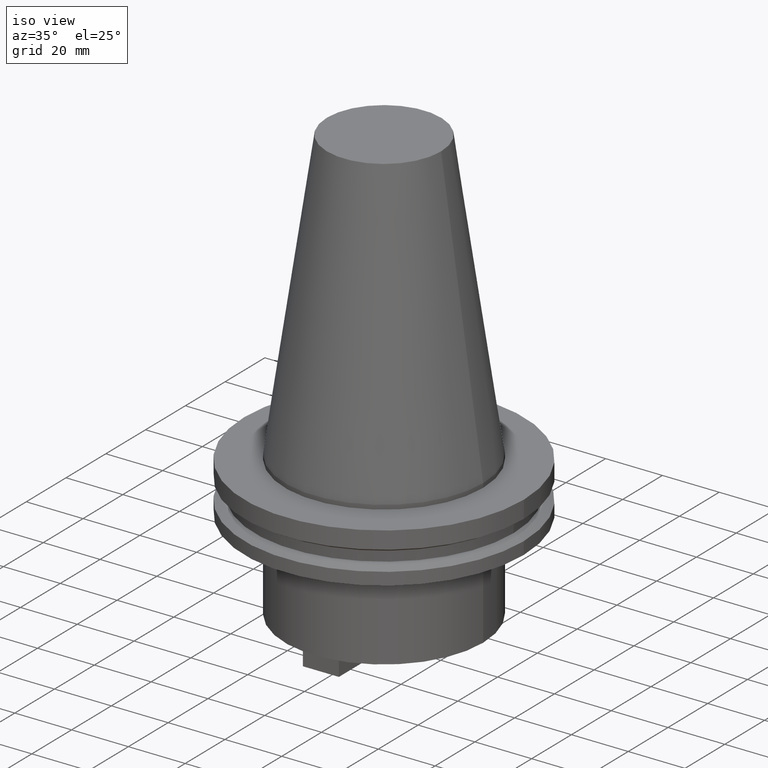
[diagram: clean part render]
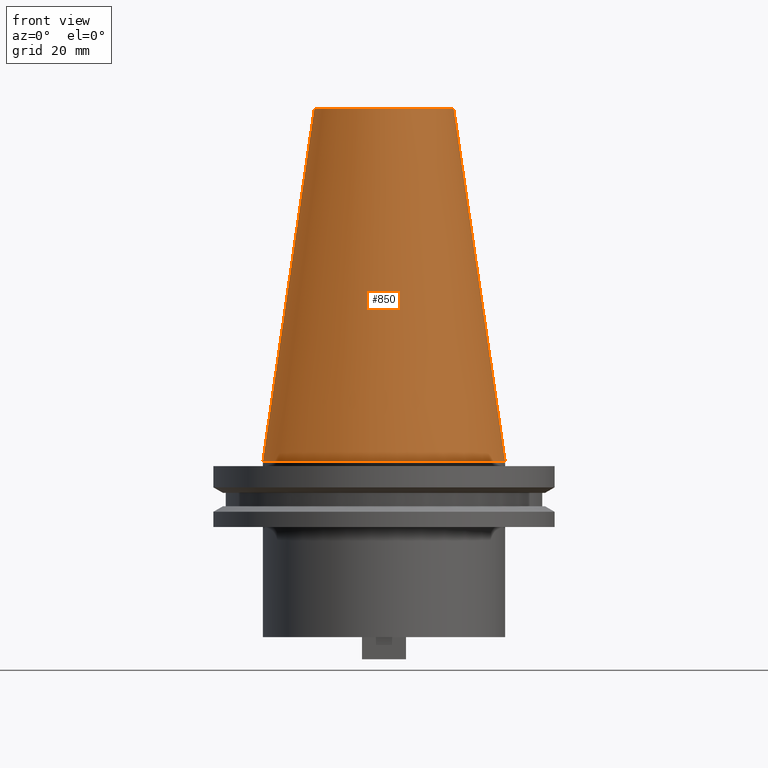
[diagram: tour spotlight — one face highlighted and labeled with its STEP entity id]
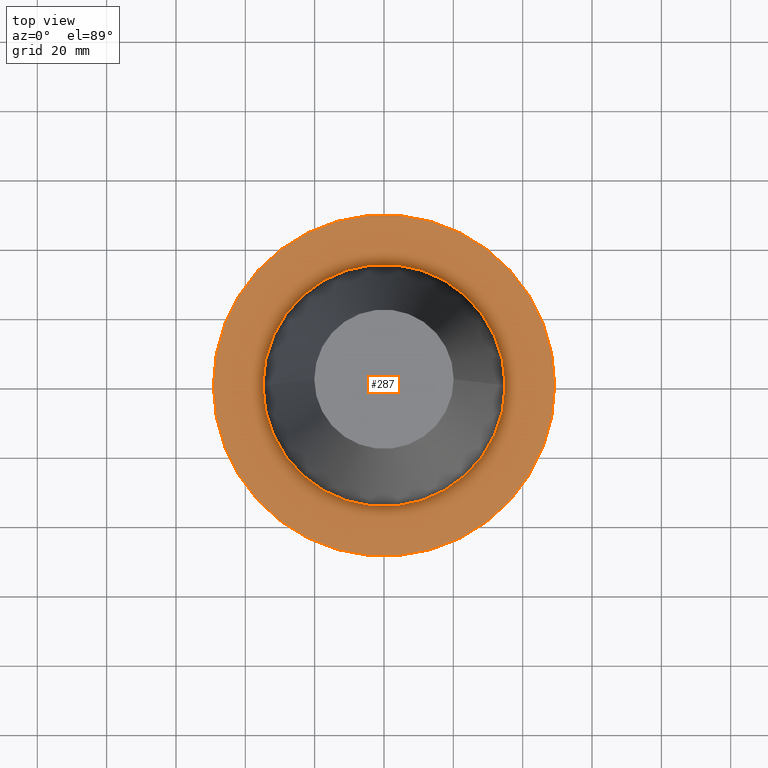
[diagram: tour spotlight — one face highlighted and labeled with its STEP entity id]
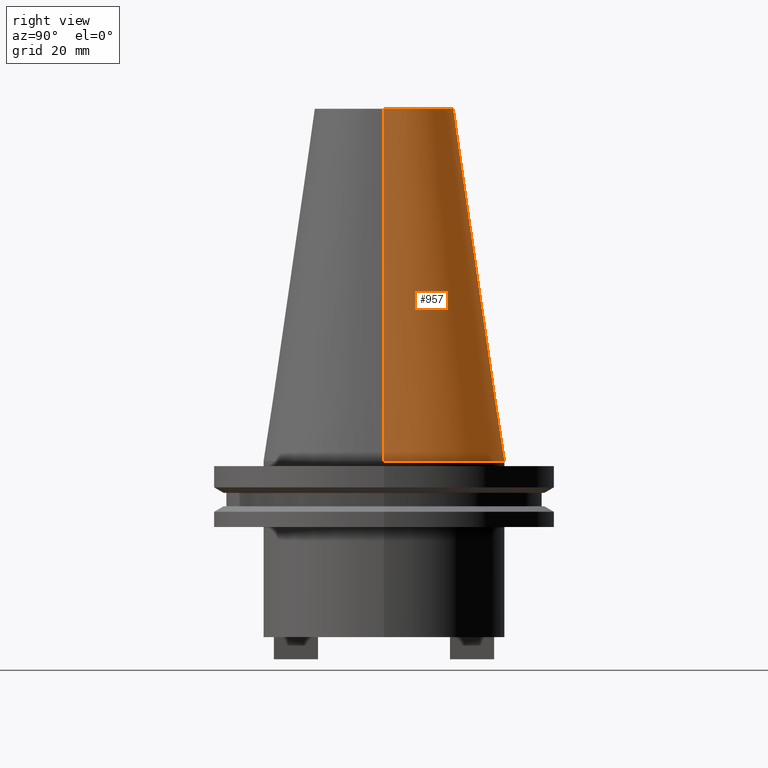
[diagram: tour spotlight — one face highlighted and labeled with its STEP entity id]
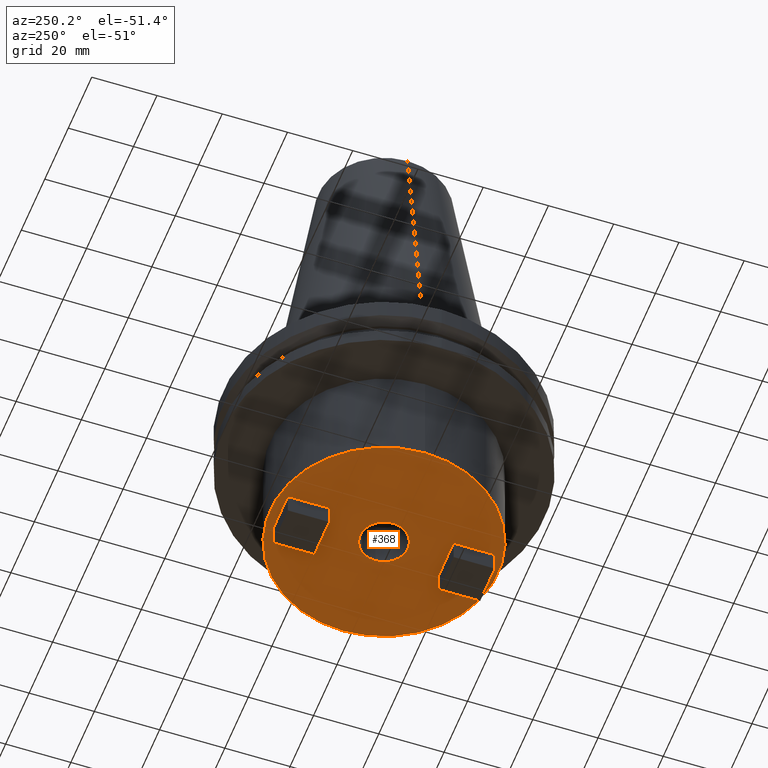
[diagram: tour spotlight — one face highlighted and labeled with its STEP entity id]
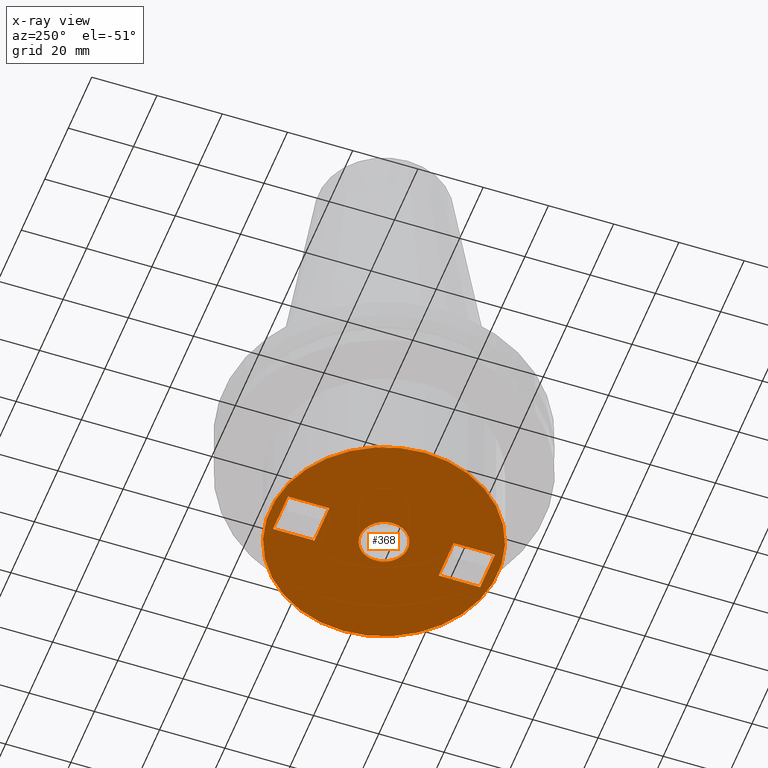
[diagram: x-ray of the same camera — body ghosted, this tour face saturated]
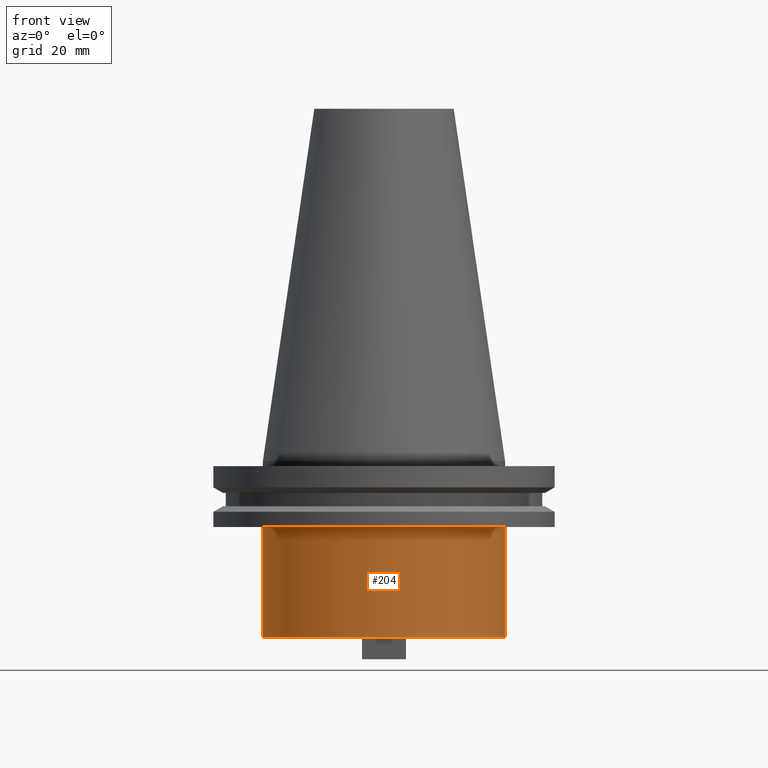
[diagram: tour spotlight — one face highlighted and labeled with its STEP entity id]
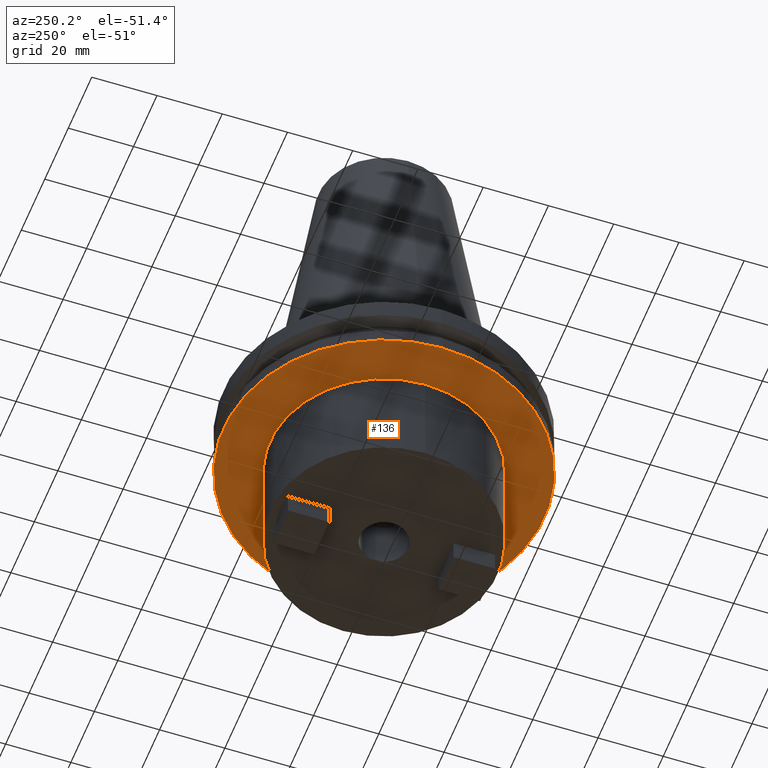
[diagram: tour spotlight — one face highlighted and labeled with its STEP entity id]
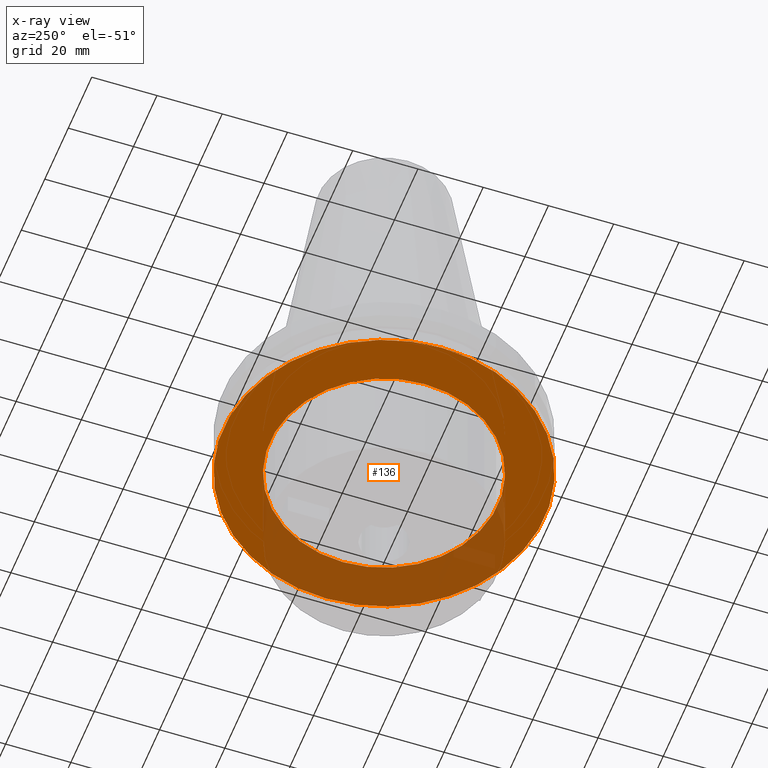
[diagram: x-ray of the same camera — body ghosted, this tour face saturated]
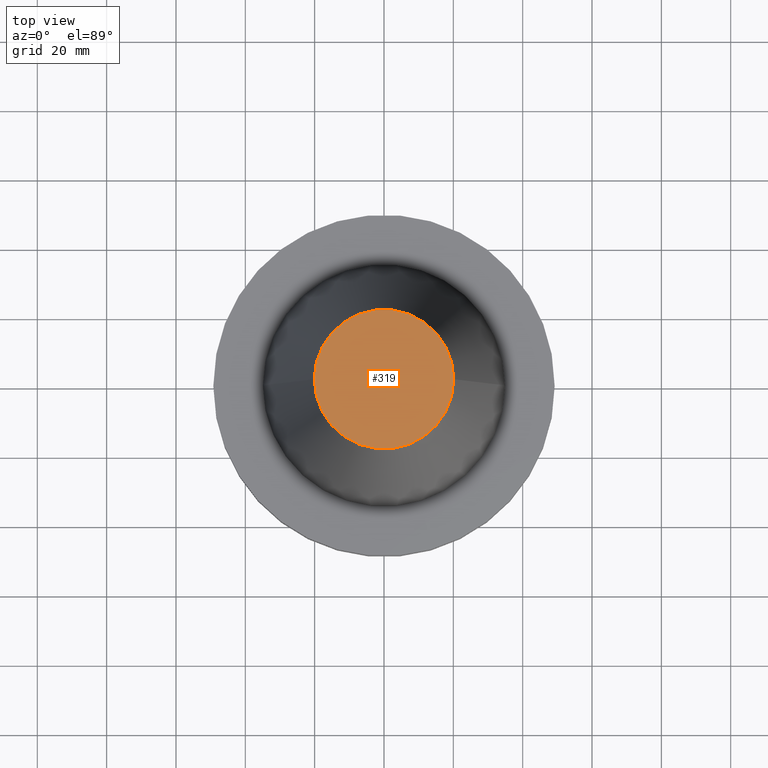
[diagram: tour spotlight — one face highlighted and labeled with its STEP entity id]
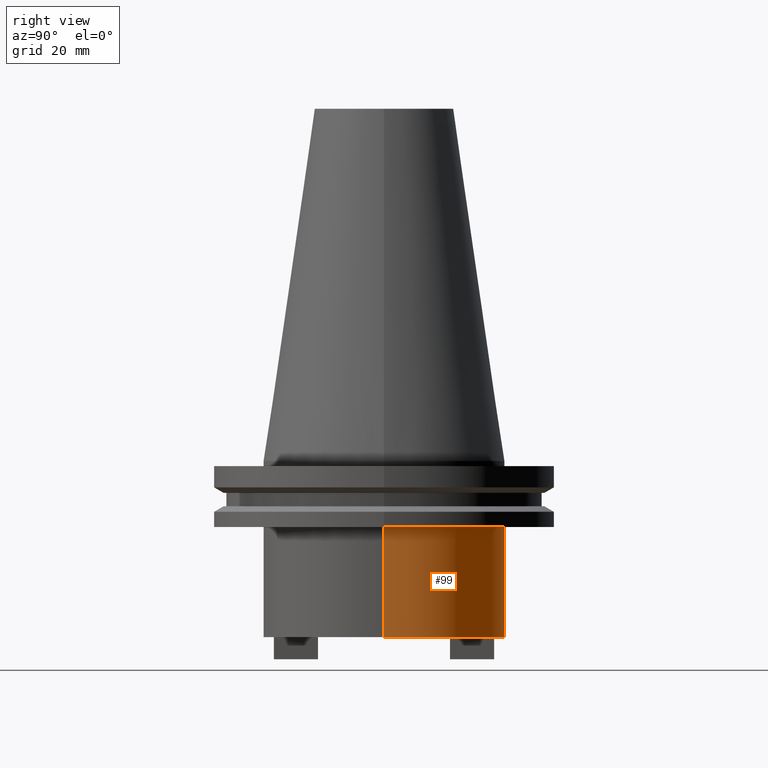
[diagram: tour spotlight — one face highlighted and labeled with its STEP entity id]
A machine part: a face-by-face anatomy tour. The part has 35 B-rep faces; the first image is the clean iso view, then the 8 largest visible faces are spotlighted one at a time (largest first), each with its STEP entity span.

Face 1 — front view, entity #850. In plain terms, the highlighted conical surface has half-angle 8.297 deg.
Definition (entity closure, byte-faithful):
#68 = AXIS2_PLACEMENT_3D ( 'NONE', #403, #802, #641 ) ;
#80 = DIRECTION ( 'NONE',  ( -0.000000000000000000, -0.000000000000000000, 1.000000000000000000 ) ) ;
#83 = ORIENTED_EDGE ( 'NONE', *, *, #469, .F. ) ;
#117 = EDGE_CURVE ( 'NONE', #989, #119, #818, .T. ) ;
#119 = VERTEX_POINT ( 'NONE', #896 ) ;
#186 = ORIENTED_EDGE ( 'NONE', *, *, #390, .T. ) ;
#188 = CARTESIAN_POINT ( 'NONE',  ( 0.000000000000000000, 0.000000000000000000, 0.000000000000000000 ) ) ;
#241 = CARTESIAN_POINT ( 'NONE',  ( -34.92499999999999005, 0.000000000000000000, 0.000000000000000000 ) ) ;
#247 = VECTOR ( 'NONE', #905, 999.9999999999998863 ) ;
#274 = CARTESIAN_POINT ( 'NONE',  ( 20.10819343178871321, 3.369811209154858606E-15, 101.5999999999999801 ) ) ;
#277 = CIRCLE ( 'NONE', #68, 34.92499999999999005 ) ;
#374 = CARTESIAN_POINT ( 'NONE',  ( -34.92499999999999005, 0.000000000000000000, 0.000000000000000000 ) ) ;
#389 = ORIENTED_EDGE ( 'NONE', *, *, #117, .F. ) ;
#390 = EDGE_CURVE ( 'NONE', #865, #119, #277, .T. ) ;
#402 = FACE_OUTER_BOUND ( 'NONE', #925, .T. ) ;
#403 = CARTESIAN_POINT ( 'NONE',  ( 0.000000000000000000, 0.000000000000000000, 0.000000000000000000 ) ) ;
#449 = LINE ( 'NONE', #374, #247 ) ;
#469 = EDGE_CURVE ( 'NONE', #978, #989, #898, .T. ) ;
#483 = AXIS2_PLACEMENT_3D ( 'NONE', #188, #501, #712 ) ;
#501 = DIRECTION ( 'NONE',  ( 0.000000000000000000, 0.000000000000000000, -1.000000000000000000 ) ) ;
#506 = CARTESIAN_POINT ( 'NONE',  ( 34.92499999999999005, 4.277078946022130098E-15, 0.000000000000000000 ) ) ;
#641 = DIRECTION ( 'NONE',  ( 1.000000000000000000, 0.000000000000000000, 0.000000000000000000 ) ) ;
#648 = AXIS2_PLACEMENT_3D ( 'NONE', #713, #80, #652 ) ;
#652 = DIRECTION ( 'NONE',  ( 1.000000000000000000, 0.000000000000000000, 0.000000000000000000 ) ) ;
#677 = VECTOR ( 'NONE', #824, 999.9999999999998863 ) ;
#688 = CARTESIAN_POINT ( 'NONE',  ( -20.10819343178871321, 0.000000000000000000, 101.5999999999999801 ) ) ;
#708 = CONICAL_SURFACE ( 'NONE', #483, 34.92499999999999005, 0.1448138465474119452 ) ;
#712 = DIRECTION ( 'NONE',  ( -1.000000000000000000, 0.000000000000000000, 0.000000000000000000 ) ) ;
#713 = CARTESIAN_POINT ( 'NONE',  ( 0.000000000000000000, 0.000000000000000000, 101.5999999999999801 ) ) ;
#802 = DIRECTION ( 'NONE',  ( -0.000000000000000000, -0.000000000000000000, 1.000000000000000000 ) ) ;
#818 = LINE ( 'NONE', #506, #677 ) ;
#824 = DIRECTION ( 'NONE',  ( 0.1443082272672999988, 1.767266086135277066E-17, -0.9895327864921755756 ) ) ;
#850 = ADVANCED_FACE ( 'NONE', ( #402 ), #708, .T. ) ;
#863 = ORIENTED_EDGE ( 'NONE', *, *, #997, .T. ) ;
#865 = VERTEX_POINT ( 'NONE', #241 ) ;
#896 = CARTESIAN_POINT ( 'NONE',  ( 34.92499999999999005, 4.277078946022130098E-15, 0.000000000000000000 ) ) ;
#898 = CIRCLE ( 'NONE', #648, 20.10819343178871321 ) ;
#905 = DIRECTION ( 'NONE',  ( -0.1443082272672999988, 0.000000000000000000, -0.9895327864921755756 ) ) ;
#925 = EDGE_LOOP ( 'NONE', ( #389, #83, #863, #186 ) ) ;
#978 = VERTEX_POINT ( 'NONE', #688 ) ;
#989 = VERTEX_POINT ( 'NONE', #274 ) ;
#997 = EDGE_CURVE ( 'NONE', #978, #865, #449, .T. ) ;

Face 2 — top view, entity #287. In plain terms, the highlighted planar face has unit normal (0, 0, -1).
Definition (entity closure, byte-faithful):
#1 = FACE_BOUND ( 'NONE', #823, .T. ) ;
#8 = CARTESIAN_POINT ( 'NONE',  ( 49.21499999999999631, 0.000000000000000000, -1.499999999999987566 ) ) ;
#16 = AXIS2_PLACEMENT_3D ( 'NONE', #386, #618, #224 ) ;
#74 = EDGE_CURVE ( 'NONE', #445, #583, #131, .T. ) ;
#85 = CARTESIAN_POINT ( 'NONE',  ( 34.92499999999999005, 0.000000000000000000, -1.499999999999987566 ) ) ;
#113 = CARTESIAN_POINT ( 'NONE',  ( 0.000000000000000000, 0.000000000000000000, -1.499999999999987566 ) ) ;
#120 = DIRECTION ( 'NONE',  ( -0.000000000000000000, -0.000000000000000000, 1.000000000000000000 ) ) ;
#130 = ORIENTED_EDGE ( 'NONE', *, *, #139, .T. ) ;
#131 = CIRCLE ( 'NONE', #595, 49.21499999999999631 ) ;
#139 = EDGE_CURVE ( 'NONE', #583, #445, #258, .T. ) ;
#150 = AXIS2_PLACEMENT_3D ( 'NONE', #113, #120, #354 ) ;
#224 = DIRECTION ( 'NONE',  ( -1.000000000000000000, 0.000000000000000000, -0.000000000000000000 ) ) ;
#255 = ORIENTED_EDGE ( 'NONE', *, *, #74, .T. ) ;
#258 = CIRCLE ( 'NONE', #835, 49.21499999999999631 ) ;
#260 = CARTESIAN_POINT ( 'NONE',  ( -49.21499999999999631, 6.027099222003697826E-15, -1.499999999999987566 ) ) ;
#287 = ADVANCED_FACE ( 'NONE', ( #1, #293 ), #1006, .F. ) ;
#293 = FACE_OUTER_BOUND ( 'NONE', #941, .T. ) ;
#349 = DIRECTION ( 'NONE',  ( -0.000000000000000000, -0.000000000000000000, 1.000000000000000000 ) ) ;
#354 = DIRECTION ( 'NONE',  ( 1.000000000000000000, 0.000000000000000000, 0.000000000000000000 ) ) ;
#386 = CARTESIAN_POINT ( 'NONE',  ( 0.000000000000000000, 49.21499999999999631, -1.499999999999992895 ) ) ;
#445 = VERTEX_POINT ( 'NONE', #8 ) ;
#494 = CIRCLE ( 'NONE', #150, 34.92499999999999005 ) ;
#498 = ORIENTED_EDGE ( 'NONE', *, *, #580, .F. ) ;
#520 = ORIENTED_EDGE ( 'NONE', *, *, #656, .F. ) ;
#555 = DIRECTION ( 'NONE',  ( 1.000000000000000000, 0.000000000000000000, 0.000000000000000000 ) ) ;
#559 = VERTEX_POINT ( 'NONE', #979 ) ;
#564 = AXIS2_PLACEMENT_3D ( 'NONE', #775, #769, #847 ) ;
#580 = EDGE_CURVE ( 'NONE', #794, #559, #494, .T. ) ;
#583 = VERTEX_POINT ( 'NONE', #260 ) ;
#595 = AXIS2_PLACEMENT_3D ( 'NONE', #718, #792, #555 ) ;
#618 = DIRECTION ( 'NONE',  ( 0.000000000000000000, 0.000000000000000000, -1.000000000000000000 ) ) ;
#656 = EDGE_CURVE ( 'NONE', #559, #794, #679, .T. ) ;
#660 = DIRECTION ( 'NONE',  ( 1.000000000000000000, 0.000000000000000000, 0.000000000000000000 ) ) ;
#679 = CIRCLE ( 'NONE', #564, 34.92499999999999005 ) ;
#718 = CARTESIAN_POINT ( 'NONE',  ( 0.000000000000000000, 0.000000000000000000, -1.499999999999987566 ) ) ;
#737 = CARTESIAN_POINT ( 'NONE',  ( 0.000000000000000000, 0.000000000000000000, -1.499999999999987566 ) ) ;
#769 = DIRECTION ( 'NONE',  ( -0.000000000000000000, -0.000000000000000000, 1.000000000000000000 ) ) ;
#775 = CARTESIAN_POINT ( 'NONE',  ( 0.000000000000000000, 0.000000000000000000, -1.499999999999987566 ) ) ;
#792 = DIRECTION ( 'NONE',  ( -0.000000000000000000, -0.000000000000000000, 1.000000000000000000 ) ) ;
#794 = VERTEX_POINT ( 'NONE', #85 ) ;
#823 = EDGE_LOOP ( 'NONE', ( #498, #520 ) ) ;
#835 = AXIS2_PLACEMENT_3D ( 'NONE', #737, #349, #660 ) ;
#847 = DIRECTION ( 'NONE',  ( 1.000000000000000000, 0.000000000000000000, 0.000000000000000000 ) ) ;
#941 = EDGE_LOOP ( 'NONE', ( #255, #130 ) ) ;
#979 = CARTESIAN_POINT ( 'NONE',  ( -34.92499999999999005, 4.277078946022130098E-15, -1.499999999999987566 ) ) ;
#1006 = PLANE ( 'NONE',  #16 ) ;

Face 3 — right view, entity #957. In plain terms, the highlighted conical surface has half-angle 8.297 deg.
Definition (entity closure, byte-faithful):
#13 = DIRECTION ( 'NONE',  ( -0.000000000000000000, -0.000000000000000000, 1.000000000000000000 ) ) ;
#37 = ORIENTED_EDGE ( 'NONE', *, *, #42, .T. ) ;
#39 = DIRECTION ( 'NONE',  ( -0.000000000000000000, -0.000000000000000000, 1.000000000000000000 ) ) ;
#42 = EDGE_CURVE ( 'NONE', #119, #865, #929, .T. ) ;
#53 = DIRECTION ( 'NONE',  ( -1.000000000000000000, 0.000000000000000000, 0.000000000000000000 ) ) ;
#117 = EDGE_CURVE ( 'NONE', #989, #119, #818, .T. ) ;
#119 = VERTEX_POINT ( 'NONE', #896 ) ;
#135 = AXIS2_PLACEMENT_3D ( 'NONE', #899, #745, #53 ) ;
#208 = EDGE_CURVE ( 'NONE', #989, #978, #738, .T. ) ;
#241 = CARTESIAN_POINT ( 'NONE',  ( -34.92499999999999005, 0.000000000000000000, 0.000000000000000000 ) ) ;
#247 = VECTOR ( 'NONE', #905, 999.9999999999998863 ) ;
#254 = EDGE_LOOP ( 'NONE', ( #525, #770, #37, #946 ) ) ;
#259 = AXIS2_PLACEMENT_3D ( 'NONE', #510, #39, #425 ) ;
#274 = CARTESIAN_POINT ( 'NONE',  ( 20.10819343178871321, 3.369811209154858606E-15, 101.5999999999999801 ) ) ;
#299 = CONICAL_SURFACE ( 'NONE', #135, 34.92499999999999005, 0.1448138465474119452 ) ;
#374 = CARTESIAN_POINT ( 'NONE',  ( -34.92499999999999005, 0.000000000000000000, 0.000000000000000000 ) ) ;
#425 = DIRECTION ( 'NONE',  ( 1.000000000000000000, 0.000000000000000000, 0.000000000000000000 ) ) ;
#437 = FACE_OUTER_BOUND ( 'NONE', #254, .T. ) ;
#449 = LINE ( 'NONE', #374, #247 ) ;
#477 = AXIS2_PLACEMENT_3D ( 'NONE', #571, #13, #657 ) ;
#506 = CARTESIAN_POINT ( 'NONE',  ( 34.92499999999999005, 4.277078946022130098E-15, 0.000000000000000000 ) ) ;
#510 = CARTESIAN_POINT ( 'NONE',  ( 0.000000000000000000, 0.000000000000000000, 101.5999999999999801 ) ) ;
#525 = ORIENTED_EDGE ( 'NONE', *, *, #208, .F. ) ;
#571 = CARTESIAN_POINT ( 'NONE',  ( 0.000000000000000000, 0.000000000000000000, 0.000000000000000000 ) ) ;
#657 = DIRECTION ( 'NONE',  ( 1.000000000000000000, 0.000000000000000000, 0.000000000000000000 ) ) ;
#677 = VECTOR ( 'NONE', #824, 999.9999999999998863 ) ;
#688 = CARTESIAN_POINT ( 'NONE',  ( -20.10819343178871321, 0.000000000000000000, 101.5999999999999801 ) ) ;
#738 = CIRCLE ( 'NONE', #259, 20.10819343178871321 ) ;
#745 = DIRECTION ( 'NONE',  ( 0.000000000000000000, 0.000000000000000000, -1.000000000000000000 ) ) ;
#770 = ORIENTED_EDGE ( 'NONE', *, *, #117, .T. ) ;
#818 = LINE ( 'NONE', #506, #677 ) ;
#824 = DIRECTION ( 'NONE',  ( 0.1443082272672999988, 1.767266086135277066E-17, -0.9895327864921755756 ) ) ;
#865 = VERTEX_POINT ( 'NONE', #241 ) ;
#896 = CARTESIAN_POINT ( 'NONE',  ( 34.92499999999999005, 4.277078946022130098E-15, 0.000000000000000000 ) ) ;
#899 = CARTESIAN_POINT ( 'NONE',  ( 0.000000000000000000, 0.000000000000000000, 0.000000000000000000 ) ) ;
#905 = DIRECTION ( 'NONE',  ( -0.1443082272672999988, 0.000000000000000000, -0.9895327864921755756 ) ) ;
#929 = CIRCLE ( 'NONE', #477, 34.92499999999999005 ) ;
#946 = ORIENTED_EDGE ( 'NONE', *, *, #997, .F. ) ;
#957 = ADVANCED_FACE ( 'NONE', ( #437 ), #299, .T. ) ;
#978 = VERTEX_POINT ( 'NONE', #688 ) ;
#989 = VERTEX_POINT ( 'NONE', #274 ) ;
#997 = EDGE_CURVE ( 'NONE', #978, #865, #449, .T. ) ;

Face 4 — auxiliary view, entity #368. An x-ray twin of the same camera follows (body ghosted, this face saturated) — the face is partly hidden behind the body. In plain terms, the highlighted planar face has unit normal (0, -0, 1).
Definition (entity closure, byte-faithful):
#7 = DIRECTION ( 'NONE',  ( 1.000000000000000000, 0.000000000000000000, 0.000000000000000000 ) ) ;
#11 = EDGE_LOOP ( 'NONE', ( #751, #41 ) ) ;
#31 = EDGE_LOOP ( 'NONE', ( #1004, #474 ) ) ;
#41 = ORIENTED_EDGE ( 'NONE', *, *, #1005, .T. ) ;
#46 = DIRECTION ( 'NONE',  ( 1.000000000000000000, 0.000000000000000000, 0.000000000000000000 ) ) ;
#55 = CARTESIAN_POINT ( 'NONE',  ( 0.000000000000000000, 0.000000000000000000, -50.79999999999999716 ) ) ;
#73 = DIRECTION ( 'NONE',  ( 1.000000000000000000, 0.000000000000000000, 0.000000000000000000 ) ) ;
#79 = VERTEX_POINT ( 'NONE', #342 ) ;
#92 = EDGE_CURVE ( 'NONE', #776, #490, #565, .T. ) ;
#94 = DIRECTION ( 'NONE',  ( 1.365923996832130130E-16, 1.000000000000000000, 0.000000000000000000 ) ) ;
#96 = EDGE_LOOP ( 'NONE', ( #714, #330, #265, #461 ) ) ;
#98 = VECTOR ( 'NONE', #94, 1000.000000000000000 ) ;
#110 = DIRECTION ( 'NONE',  ( 1.000000000000000000, -1.092739197465706471E-15, -0.000000000000000000 ) ) ;
#123 = EDGE_CURVE ( 'NONE', #160, #472, #197, .T. ) ;
#125 = CARTESIAN_POINT ( 'NONE',  ( 0.000000000000000000, 0.000000000000000000, -50.80000000000001137 ) ) ;
#146 = DIRECTION ( 'NONE',  ( -0.000000000000000000, -0.000000000000000000, 1.000000000000000000 ) ) ;
#148 = FACE_BOUND ( 'NONE', #416, .T. ) ;
#152 = DIRECTION ( 'NONE',  ( 1.000000000000000000, 0.000000000000000000, 0.000000000000000000 ) ) ;
#160 = VERTEX_POINT ( 'NONE', #589 ) ;
#161 = EDGE_CURVE ( 'NONE', #880, #502, #365, .T. ) ;
#180 = VECTOR ( 'NONE', #637, 1000.000000000000000 ) ;
#197 = LINE ( 'NONE', #516, #492 ) ;
#205 = CARTESIAN_POINT ( 'NONE',  ( -7.339999999999969660, 8.988907505741536366E-16, -50.80000000000001137 ) ) ;
#229 = AXIS2_PLACEMENT_3D ( 'NONE', #947, #471, #7 ) ;
#237 = VERTEX_POINT ( 'NONE', #584 ) ;
#251 = CARTESIAN_POINT ( 'NONE',  ( 6.349999999999992539, 31.75000000000000000, -50.80000000000000426 ) ) ;
#265 = ORIENTED_EDGE ( 'NONE', *, *, #497, .F. ) ;
#269 = DIRECTION ( 'NONE',  ( -0.000000000000000000, -0.000000000000000000, 1.000000000000000000 ) ) ;
#323 = DIRECTION ( 'NONE',  ( -1.365923996832131116E-16, 1.000000000000000000, -0.000000000000000000 ) ) ;
#330 = ORIENTED_EDGE ( 'NONE', *, *, #670, .F. ) ;
#342 = CARTESIAN_POINT ( 'NONE',  ( 34.92499999999999716, 0.000000000000000000, -50.79999999999999716 ) ) ;
#347 = VECTOR ( 'NONE', #323, 1000.000000000000000 ) ;
#351 = CARTESIAN_POINT ( 'NONE',  ( -34.92499999999999716, 4.277078946022130887E-15, -50.79999999999999716 ) ) ;
#365 = LINE ( 'NONE', #890, #479 ) ;
#366 = LINE ( 'NONE', #684, #632 ) ;
#368 = ADVANCED_FACE ( 'NONE', ( #457, #934, #849, #148 ), #704, .F. ) ;
#413 = AXIS2_PLACEMENT_3D ( 'NONE', #55, #146, #152 ) ;
#416 = EDGE_LOOP ( 'NONE', ( #887, #535, #698, #538 ) ) ;
#417 = CARTESIAN_POINT ( 'NONE',  ( 6.349999999999984546, -19.05000000000001137, -50.80000000000000426 ) ) ;
#422 = EDGE_CURVE ( 'NONE', #490, #880, #864, .T. ) ;
#440 = DIRECTION ( 'NONE',  ( 1.365923996832132102E-16, -1.000000000000000000, 0.000000000000000000 ) ) ;
#450 = CARTESIAN_POINT ( 'NONE',  ( 6.349999999999984546, -31.75000000000001421, -50.80000000000000426 ) ) ;
#457 = FACE_BOUND ( 'NONE', #96, .T. ) ;
#461 = ORIENTED_EDGE ( 'NONE', *, *, #123, .F. ) ;
#471 = DIRECTION ( 'NONE',  ( -0.000000000000000000, -0.000000000000000000, 1.000000000000000000 ) ) ;
#472 = VERTEX_POINT ( 'NONE', #251 ) ;
#474 = ORIENTED_EDGE ( 'NONE', *, *, #653, .F. ) ;
#479 = VECTOR ( 'NONE', #110, 1000.000000000000000 ) ;
#485 = CARTESIAN_POINT ( 'NONE',  ( 6.349999999999984546, -31.75000000000000711, -50.80000000000000426 ) ) ;
#490 = VERTEX_POINT ( 'NONE', #573 ) ;
#492 = VECTOR ( 'NONE', #970, 1000.000000000000000 ) ;
#497 = EDGE_CURVE ( 'NONE', #472, #567, #554, .T. ) ;
#502 = VERTEX_POINT ( 'NONE', #417 ) ;
#516 = CARTESIAN_POINT ( 'NONE',  ( 6.349999999999992539, 31.75000000000000000, -50.80000000000000426 ) ) ;
#519 = CARTESIAN_POINT ( 'NONE',  ( 6.349999999999994316, 19.05000000000000426, -50.80000000000000426 ) ) ;
#535 = ORIENTED_EDGE ( 'NONE', *, *, #92, .F. ) ;
#538 = ORIENTED_EDGE ( 'NONE', *, *, #161, .F. ) ;
#554 = LINE ( 'NONE', #788, #598 ) ;
#565 = LINE ( 'NONE', #872, #851 ) ;
#567 = VERTEX_POINT ( 'NONE', #519 ) ;
#568 = LINE ( 'NONE', #874, #347 ) ;
#573 = CARTESIAN_POINT ( 'NONE',  ( -6.350000000000004974, -31.75000000000000711, -50.80000000000000426 ) ) ;
#579 = AXIS2_PLACEMENT_3D ( 'NONE', #125, #675, #736 ) ;
#584 = CARTESIAN_POINT ( 'NONE',  ( 7.339999999999968772, 0.000000000000000000, -50.80000000000001137 ) ) ;
#589 = CARTESIAN_POINT ( 'NONE',  ( -6.350000000000004974, 31.75000000000000000, -50.80000000000000426 ) ) ;
#598 = VECTOR ( 'NONE', #440, 1000.000000000000000 ) ;
#614 = EDGE_CURVE ( 'NONE', #237, #629, #852, .T. ) ;
#629 = VERTEX_POINT ( 'NONE', #205 ) ;
#632 = VECTOR ( 'NONE', #910, 1000.000000000000000 ) ;
#637 = DIRECTION ( 'NONE',  ( -0.000000000000000000, -1.000000000000000000, -0.000000000000000000 ) ) ;
#642 = VERTEX_POINT ( 'NONE', #731 ) ;
#650 = CIRCLE ( 'NONE', #983, 7.339999999999968772 ) ;
#653 = EDGE_CURVE ( 'NONE', #933, #79, #768, .T. ) ;
#670 = EDGE_CURVE ( 'NONE', #567, #642, #366, .T. ) ;
#675 = DIRECTION ( 'NONE',  ( -0.000000000000000000, -0.000000000000000000, 1.000000000000000000 ) ) ;
#684 = CARTESIAN_POINT ( 'NONE',  ( 6.349999999999994316, 19.05000000000000426, -50.80000000000000426 ) ) ;
#696 = CARTESIAN_POINT ( 'NONE',  ( 0.000000000000000000, 34.92499999999999716, -50.80000000000000426 ) ) ;
#698 = ORIENTED_EDGE ( 'NONE', *, *, #797, .F. ) ;
#704 = PLANE ( 'NONE',  #996 ) ;
#714 = ORIENTED_EDGE ( 'NONE', *, *, #830, .F. ) ;
#731 = CARTESIAN_POINT ( 'NONE',  ( -6.350000000000003197, 19.04999999999999716, -50.80000000000000426 ) ) ;
#736 = DIRECTION ( 'NONE',  ( 1.000000000000000000, 0.000000000000000000, 0.000000000000000000 ) ) ;
#751 = ORIENTED_EDGE ( 'NONE', *, *, #614, .T. ) ;
#760 = CARTESIAN_POINT ( 'NONE',  ( 0.000000000000000000, 0.000000000000000000, -50.80000000000001137 ) ) ;
#768 = CIRCLE ( 'NONE', #413, 34.92499999999999716 ) ;
#771 = DIRECTION ( 'NONE',  ( 0.000000000000000000, -0.000000000000000000, 1.000000000000000000 ) ) ;
#776 = VERTEX_POINT ( 'NONE', #450 ) ;
#788 = CARTESIAN_POINT ( 'NONE',  ( 6.349999999999992539, 31.75000000000000000, -50.80000000000000426 ) ) ;
#789 = EDGE_CURVE ( 'NONE', #79, #933, #961, .T. ) ;
#797 = EDGE_CURVE ( 'NONE', #502, #776, #857, .T. ) ;
#830 = EDGE_CURVE ( 'NONE', #642, #160, #568, .T. ) ;
#849 = FACE_BOUND ( 'NONE', #11, .T. ) ;
#851 = VECTOR ( 'NONE', #876, 1000.000000000000000 ) ;
#852 = CIRCLE ( 'NONE', #579, 7.339999999999968772 ) ;
#857 = LINE ( 'NONE', #485, #180 ) ;
#864 = LINE ( 'NONE', #951, #98 ) ;
#869 = CARTESIAN_POINT ( 'NONE',  ( -6.350000000000003197, -19.04999999999999716, -50.80000000000000426 ) ) ;
#872 = CARTESIAN_POINT ( 'NONE',  ( 6.349999999999984546, -31.75000000000000711, -50.80000000000000426 ) ) ;
#874 = CARTESIAN_POINT ( 'NONE',  ( -6.350000000000004974, 31.75000000000000000, -50.80000000000000426 ) ) ;
#876 = DIRECTION ( 'NONE',  ( -1.000000000000000000, 0.000000000000000000, 0.000000000000000000 ) ) ;
#880 = VERTEX_POINT ( 'NONE', #869 ) ;
#887 = ORIENTED_EDGE ( 'NONE', *, *, #422, .F. ) ;
#890 = CARTESIAN_POINT ( 'NONE',  ( 6.349999999999984546, -19.05000000000000782, -50.80000000000000426 ) ) ;
#910 = DIRECTION ( 'NONE',  ( -1.000000000000000000, -5.463695987328527423E-16, 0.000000000000000000 ) ) ;
#933 = VERTEX_POINT ( 'NONE', #351 ) ;
#934 = FACE_OUTER_BOUND ( 'NONE', #31, .T. ) ;
#947 = CARTESIAN_POINT ( 'NONE',  ( 0.000000000000000000, 0.000000000000000000, -50.79999999999999716 ) ) ;
#951 = CARTESIAN_POINT ( 'NONE',  ( -6.350000000000004974, -31.75000000000000711, -50.80000000000000426 ) ) ;
#961 = CIRCLE ( 'NONE', #229, 34.92499999999999716 ) ;
#970 = DIRECTION ( 'NONE',  ( 1.000000000000000000, -0.000000000000000000, -0.000000000000000000 ) ) ;
#983 = AXIS2_PLACEMENT_3D ( 'NONE', #760, #269, #46 ) ;
#996 = AXIS2_PLACEMENT_3D ( 'NONE', #696, #771, #73 ) ;
#1004 = ORIENTED_EDGE ( 'NONE', *, *, #789, .F. ) ;
#1005 = EDGE_CURVE ( 'NONE', #629, #237, #650, .T. ) ;

Face 5 — front view, entity #204. In plain terms, the highlighted cylindrical surface (partial cylindrical patch) has radius 34.925 mm, axis along (-0, -0, 1).
Definition (entity closure, byte-faithful):
#55 = CARTESIAN_POINT ( 'NONE',  ( 0.000000000000000000, 0.000000000000000000, -50.79999999999999716 ) ) ;
#62 = LINE ( 'NONE', #1001, #960 ) ;
#71 = DIRECTION ( 'NONE',  ( 1.000000000000000000, 0.000000000000000000, 0.000000000000000000 ) ) ;
#79 = VERTEX_POINT ( 'NONE', #342 ) ;
#144 = VERTEX_POINT ( 'NONE', #358 ) ;
#146 = DIRECTION ( 'NONE',  ( -0.000000000000000000, -0.000000000000000000, 1.000000000000000000 ) ) ;
#152 = DIRECTION ( 'NONE',  ( 1.000000000000000000, 0.000000000000000000, 0.000000000000000000 ) ) ;
#202 = CYLINDRICAL_SURFACE ( 'NONE', #897, 34.92499999999999716 ) ;
#204 = ADVANCED_FACE ( 'NONE', ( #903 ), #202, .T. ) ;
#210 = CARTESIAN_POINT ( 'NONE',  ( 34.92499999999999716, 0.000000000000000000, 101.5999999999999943 ) ) ;
#225 = CARTESIAN_POINT ( 'NONE',  ( 0.000000000000000000, 0.000000000000000000, -19.04999999999999716 ) ) ;
#263 = CARTESIAN_POINT ( 'NONE',  ( 0.000000000000000000, 0.000000000000000000, 101.5999999999999943 ) ) ;
#273 = DIRECTION ( 'NONE',  ( 1.000000000000000000, 0.000000000000000000, 0.000000000000000000 ) ) ;
#312 = EDGE_CURVE ( 'NONE', #933, #843, #62, .T. ) ;
#342 = CARTESIAN_POINT ( 'NONE',  ( 34.92499999999999716, 0.000000000000000000, -50.79999999999999716 ) ) ;
#346 = VECTOR ( 'NONE', #765, 1000.000000000000000 ) ;
#351 = CARTESIAN_POINT ( 'NONE',  ( -34.92499999999999716, 4.277078946022130887E-15, -50.79999999999999716 ) ) ;
#358 = CARTESIAN_POINT ( 'NONE',  ( 34.92499999999999716, 0.000000000000000000, -19.04999999999999716 ) ) ;
#380 = CIRCLE ( 'NONE', #663, 34.92499999999999716 ) ;
#413 = AXIS2_PLACEMENT_3D ( 'NONE', #55, #146, #152 ) ;
#441 = EDGE_LOOP ( 'NONE', ( #972, #943, #487, #552 ) ) ;
#487 = ORIENTED_EDGE ( 'NONE', *, *, #685, .T. ) ;
#521 = DIRECTION ( 'NONE',  ( -0.000000000000000000, -0.000000000000000000, 1.000000000000000000 ) ) ;
#540 = LINE ( 'NONE', #210, #346 ) ;
#552 = ORIENTED_EDGE ( 'NONE', *, *, #709, .F. ) ;
#653 = EDGE_CURVE ( 'NONE', #933, #79, #768, .T. ) ;
#663 = AXIS2_PLACEMENT_3D ( 'NONE', #225, #920, #71 ) ;
#685 = EDGE_CURVE ( 'NONE', #79, #144, #540, .T. ) ;
#709 = EDGE_CURVE ( 'NONE', #843, #144, #380, .T. ) ;
#765 = DIRECTION ( 'NONE',  ( -0.000000000000000000, -0.000000000000000000, 1.000000000000000000 ) ) ;
#768 = CIRCLE ( 'NONE', #413, 34.92499999999999716 ) ;
#779 = CARTESIAN_POINT ( 'NONE',  ( -34.92499999999999716, 4.277078946022130887E-15, -19.04999999999999716 ) ) ;
#840 = DIRECTION ( 'NONE',  ( -0.000000000000000000, -0.000000000000000000, 1.000000000000000000 ) ) ;
#843 = VERTEX_POINT ( 'NONE', #779 ) ;
#897 = AXIS2_PLACEMENT_3D ( 'NONE', #263, #521, #273 ) ;
#903 = FACE_OUTER_BOUND ( 'NONE', #441, .T. ) ;
#920 = DIRECTION ( 'NONE',  ( -0.000000000000000000, -0.000000000000000000, 1.000000000000000000 ) ) ;
#933 = VERTEX_POINT ( 'NONE', #351 ) ;
#943 = ORIENTED_EDGE ( 'NONE', *, *, #653, .T. ) ;
#960 = VECTOR ( 'NONE', #840, 1000.000000000000000 ) ;
#972 = ORIENTED_EDGE ( 'NONE', *, *, #312, .F. ) ;
#1001 = CARTESIAN_POINT ( 'NONE',  ( -34.92499999999999716, 4.277078946022130887E-15, 101.5999999999999943 ) ) ;

Face 6 — auxiliary view, entity #136. An x-ray twin of the same camera follows (body ghosted, this face saturated) — the face is partly hidden behind the body. In plain terms, the highlighted planar face has unit normal (0, -0, 1).
Definition (entity closure, byte-faithful):
#45 = DIRECTION ( 'NONE',  ( 1.000000000000000000, 0.000000000000000000, 0.000000000000000000 ) ) ;
#50 = FACE_OUTER_BOUND ( 'NONE', #262, .T. ) ;
#71 = DIRECTION ( 'NONE',  ( 1.000000000000000000, 0.000000000000000000, 0.000000000000000000 ) ) ;
#136 = ADVANCED_FACE ( 'NONE', ( #50, #754 ), #813, .F. ) ;
#144 = VERTEX_POINT ( 'NONE', #358 ) ;
#156 = DIRECTION ( 'NONE',  ( 1.000000000000000000, 0.000000000000000000, 0.000000000000000000 ) ) ;
#207 = CARTESIAN_POINT ( 'NONE',  ( 0.000000000000000000, 49.21499999999998920, -19.04999999999999716 ) ) ;
#215 = CIRCLE ( 'NONE', #790, 49.21499999999998920 ) ;
#225 = CARTESIAN_POINT ( 'NONE',  ( 0.000000000000000000, 0.000000000000000000, -19.04999999999999716 ) ) ;
#236 = DIRECTION ( 'NONE',  ( -0.000000000000000000, -0.000000000000000000, 1.000000000000000000 ) ) ;
#242 = CARTESIAN_POINT ( 'NONE',  ( 0.000000000000000000, 0.000000000000000000, -19.04999999999999716 ) ) ;
#262 = EDGE_LOOP ( 'NONE', ( #322, #605 ) ) ;
#264 = CARTESIAN_POINT ( 'NONE',  ( 49.21499999999998920, 0.000000000000000000, -19.04999999999999716 ) ) ;
#278 = CARTESIAN_POINT ( 'NONE',  ( -49.21499999999998920, 6.027099222003697037E-15, -19.04999999999999716 ) ) ;
#280 = AXIS2_PLACEMENT_3D ( 'NONE', #671, #592, #604 ) ;
#317 = CARTESIAN_POINT ( 'NONE',  ( 0.000000000000000000, 0.000000000000000000, -19.04999999999999716 ) ) ;
#322 = ORIENTED_EDGE ( 'NONE', *, *, #458, .F. ) ;
#355 = DIRECTION ( 'NONE',  ( 0.000000000000000000, -0.000000000000000000, 1.000000000000000000 ) ) ;
#358 = CARTESIAN_POINT ( 'NONE',  ( 34.92499999999999716, 0.000000000000000000, -19.04999999999999716 ) ) ;
#380 = CIRCLE ( 'NONE', #663, 34.92499999999999716 ) ;
#394 = DIRECTION ( 'NONE',  ( 1.000000000000000000, 0.000000000000000000, 0.000000000000000000 ) ) ;
#458 = EDGE_CURVE ( 'NONE', #900, #512, #707, .T. ) ;
#464 = AXIS2_PLACEMENT_3D ( 'NONE', #242, #236, #394 ) ;
#476 = DIRECTION ( 'NONE',  ( -0.000000000000000000, -0.000000000000000000, 1.000000000000000000 ) ) ;
#512 = VERTEX_POINT ( 'NONE', #278 ) ;
#592 = DIRECTION ( 'NONE',  ( -0.000000000000000000, -0.000000000000000000, 1.000000000000000000 ) ) ;
#597 = ORIENTED_EDGE ( 'NONE', *, *, #709, .T. ) ;
#601 = EDGE_CURVE ( 'NONE', #144, #843, #722, .T. ) ;
#604 = DIRECTION ( 'NONE',  ( 1.000000000000000000, 0.000000000000000000, 0.000000000000000000 ) ) ;
#605 = ORIENTED_EDGE ( 'NONE', *, *, #817, .F. ) ;
#627 = AXIS2_PLACEMENT_3D ( 'NONE', #207, #355, #45 ) ;
#663 = AXIS2_PLACEMENT_3D ( 'NONE', #225, #920, #71 ) ;
#671 = CARTESIAN_POINT ( 'NONE',  ( 0.000000000000000000, 0.000000000000000000, -19.04999999999999716 ) ) ;
#690 = ORIENTED_EDGE ( 'NONE', *, *, #601, .T. ) ;
#707 = CIRCLE ( 'NONE', #464, 49.21499999999998920 ) ;
#709 = EDGE_CURVE ( 'NONE', #843, #144, #380, .T. ) ;
#722 = CIRCLE ( 'NONE', #280, 34.92499999999999716 ) ;
#754 = FACE_BOUND ( 'NONE', #839, .T. ) ;
#779 = CARTESIAN_POINT ( 'NONE',  ( -34.92499999999999716, 4.277078946022130887E-15, -19.04999999999999716 ) ) ;
#790 = AXIS2_PLACEMENT_3D ( 'NONE', #317, #476, #156 ) ;
#813 = PLANE ( 'NONE',  #627 ) ;
#817 = EDGE_CURVE ( 'NONE', #512, #900, #215, .T. ) ;
#839 = EDGE_LOOP ( 'NONE', ( #690, #597 ) ) ;
#843 = VERTEX_POINT ( 'NONE', #779 ) ;
#900 = VERTEX_POINT ( 'NONE', #264 ) ;
#920 = DIRECTION ( 'NONE',  ( -0.000000000000000000, -0.000000000000000000, 1.000000000000000000 ) ) ;

Face 7 — top view, entity #319. In plain terms, the highlighted planar face has unit normal (0, 0, -1).
Definition (entity closure, byte-faithful):
#39 = DIRECTION ( 'NONE',  ( -0.000000000000000000, -0.000000000000000000, 1.000000000000000000 ) ) ;
#80 = DIRECTION ( 'NONE',  ( -0.000000000000000000, -0.000000000000000000, 1.000000000000000000 ) ) ;
#141 = DIRECTION ( 'NONE',  ( 0.000000000000000000, 0.000000000000000000, -1.000000000000000000 ) ) ;
#208 = EDGE_CURVE ( 'NONE', #989, #978, #738, .T. ) ;
#244 = AXIS2_PLACEMENT_3D ( 'NONE', #611, #141, #994 ) ;
#259 = AXIS2_PLACEMENT_3D ( 'NONE', #510, #39, #425 ) ;
#274 = CARTESIAN_POINT ( 'NONE',  ( 20.10819343178871321, 3.369811209154858606E-15, 101.5999999999999801 ) ) ;
#319 = ADVANCED_FACE ( 'NONE', ( #626 ), #467, .F. ) ;
#425 = DIRECTION ( 'NONE',  ( 1.000000000000000000, 0.000000000000000000, 0.000000000000000000 ) ) ;
#467 = PLANE ( 'NONE',  #244 ) ;
#469 = EDGE_CURVE ( 'NONE', #978, #989, #898, .T. ) ;
#510 = CARTESIAN_POINT ( 'NONE',  ( 0.000000000000000000, 0.000000000000000000, 101.5999999999999801 ) ) ;
#611 = CARTESIAN_POINT ( 'NONE',  ( 0.000000000000000000, 20.10819343178871321, 101.5999999999999943 ) ) ;
#626 = FACE_OUTER_BOUND ( 'NONE', #651, .T. ) ;
#648 = AXIS2_PLACEMENT_3D ( 'NONE', #713, #80, #652 ) ;
#651 = EDGE_LOOP ( 'NONE', ( #985, #953 ) ) ;
#652 = DIRECTION ( 'NONE',  ( 1.000000000000000000, 0.000000000000000000, 0.000000000000000000 ) ) ;
#688 = CARTESIAN_POINT ( 'NONE',  ( -20.10819343178871321, 0.000000000000000000, 101.5999999999999801 ) ) ;
#713 = CARTESIAN_POINT ( 'NONE',  ( 0.000000000000000000, 0.000000000000000000, 101.5999999999999801 ) ) ;
#738 = CIRCLE ( 'NONE', #259, 20.10819343178871321 ) ;
#898 = CIRCLE ( 'NONE', #648, 20.10819343178871321 ) ;
#953 = ORIENTED_EDGE ( 'NONE', *, *, #208, .T. ) ;
#978 = VERTEX_POINT ( 'NONE', #688 ) ;
#985 = ORIENTED_EDGE ( 'NONE', *, *, #469, .T. ) ;
#989 = VERTEX_POINT ( 'NONE', #274 ) ;
#994 = DIRECTION ( 'NONE',  ( -1.000000000000000000, 0.000000000000000000, -0.000000000000000000 ) ) ;

Face 8 — right view, entity #99. In plain terms, the highlighted cylindrical surface (partial cylindrical patch) has radius 34.925 mm, axis along (-0, -0, 1).
Definition (entity closure, byte-faithful):
#7 = DIRECTION ( 'NONE',  ( 1.000000000000000000, 0.000000000000000000, 0.000000000000000000 ) ) ;
#62 = LINE ( 'NONE', #1001, #960 ) ;
#79 = VERTEX_POINT ( 'NONE', #342 ) ;
#99 = ADVANCED_FACE ( 'NONE', ( #649 ), #799, .T. ) ;
#144 = VERTEX_POINT ( 'NONE', #358 ) ;
#173 = DIRECTION ( 'NONE',  ( -0.000000000000000000, -0.000000000000000000, 1.000000000000000000 ) ) ;
#201 = ORIENTED_EDGE ( 'NONE', *, *, #685, .F. ) ;
#210 = CARTESIAN_POINT ( 'NONE',  ( 34.92499999999999716, 0.000000000000000000, 101.5999999999999943 ) ) ;
#229 = AXIS2_PLACEMENT_3D ( 'NONE', #947, #471, #7 ) ;
#280 = AXIS2_PLACEMENT_3D ( 'NONE', #671, #592, #604 ) ;
#286 = ORIENTED_EDGE ( 'NONE', *, *, #789, .T. ) ;
#292 = ORIENTED_EDGE ( 'NONE', *, *, #601, .F. ) ;
#311 = AXIS2_PLACEMENT_3D ( 'NONE', #335, #173, #654 ) ;
#312 = EDGE_CURVE ( 'NONE', #933, #843, #62, .T. ) ;
#335 = CARTESIAN_POINT ( 'NONE',  ( 0.000000000000000000, 0.000000000000000000, 101.5999999999999943 ) ) ;
#342 = CARTESIAN_POINT ( 'NONE',  ( 34.92499999999999716, 0.000000000000000000, -50.79999999999999716 ) ) ;
#346 = VECTOR ( 'NONE', #765, 1000.000000000000000 ) ;
#351 = CARTESIAN_POINT ( 'NONE',  ( -34.92499999999999716, 4.277078946022130887E-15, -50.79999999999999716 ) ) ;
#358 = CARTESIAN_POINT ( 'NONE',  ( 34.92499999999999716, 0.000000000000000000, -19.04999999999999716 ) ) ;
#471 = DIRECTION ( 'NONE',  ( -0.000000000000000000, -0.000000000000000000, 1.000000000000000000 ) ) ;
#540 = LINE ( 'NONE', #210, #346 ) ;
#592 = DIRECTION ( 'NONE',  ( -0.000000000000000000, -0.000000000000000000, 1.000000000000000000 ) ) ;
#601 = EDGE_CURVE ( 'NONE', #144, #843, #722, .T. ) ;
#604 = DIRECTION ( 'NONE',  ( 1.000000000000000000, 0.000000000000000000, 0.000000000000000000 ) ) ;
#649 = FACE_OUTER_BOUND ( 'NONE', #669, .T. ) ;
#654 = DIRECTION ( 'NONE',  ( 1.000000000000000000, 0.000000000000000000, 0.000000000000000000 ) ) ;
#669 = EDGE_LOOP ( 'NONE', ( #286, #921, #292, #201 ) ) ;
#671 = CARTESIAN_POINT ( 'NONE',  ( 0.000000000000000000, 0.000000000000000000, -19.04999999999999716 ) ) ;
#685 = EDGE_CURVE ( 'NONE', #79, #144, #540, .T. ) ;
#722 = CIRCLE ( 'NONE', #280, 34.92499999999999716 ) ;
#765 = DIRECTION ( 'NONE',  ( -0.000000000000000000, -0.000000000000000000, 1.000000000000000000 ) ) ;
#779 = CARTESIAN_POINT ( 'NONE',  ( -34.92499999999999716, 4.277078946022130887E-15, -19.04999999999999716 ) ) ;
#789 = EDGE_CURVE ( 'NONE', #79, #933, #961, .T. ) ;
#799 = CYLINDRICAL_SURFACE ( 'NONE', #311, 34.92499999999999716 ) ;
#840 = DIRECTION ( 'NONE',  ( -0.000000000000000000, -0.000000000000000000, 1.000000000000000000 ) ) ;
#843 = VERTEX_POINT ( 'NONE', #779 ) ;
#921 = ORIENTED_EDGE ( 'NONE', *, *, #312, .T. ) ;
#933 = VERTEX_POINT ( 'NONE', #351 ) ;
#947 = CARTESIAN_POINT ( 'NONE',  ( 0.000000000000000000, 0.000000000000000000, -50.79999999999999716 ) ) ;
#960 = VECTOR ( 'NONE', #840, 1000.000000000000000 ) ;
#961 = CIRCLE ( 'NONE', #229, 34.92499999999999716 ) ;
#1001 = CARTESIAN_POINT ( 'NONE',  ( -34.92499999999999716, 4.277078946022130887E-15, 101.5999999999999943 ) ) ;